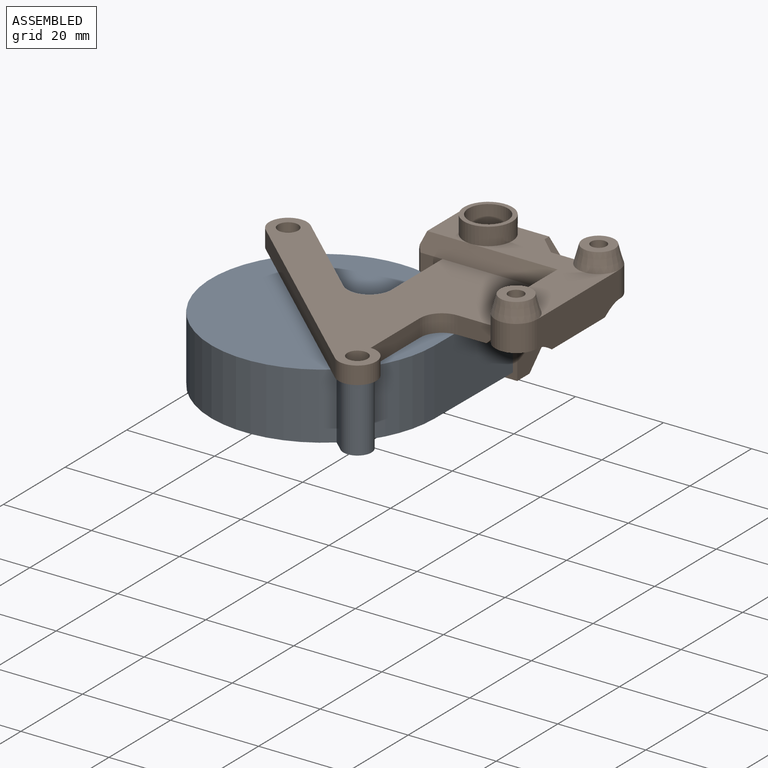
[diagram: assembled view]
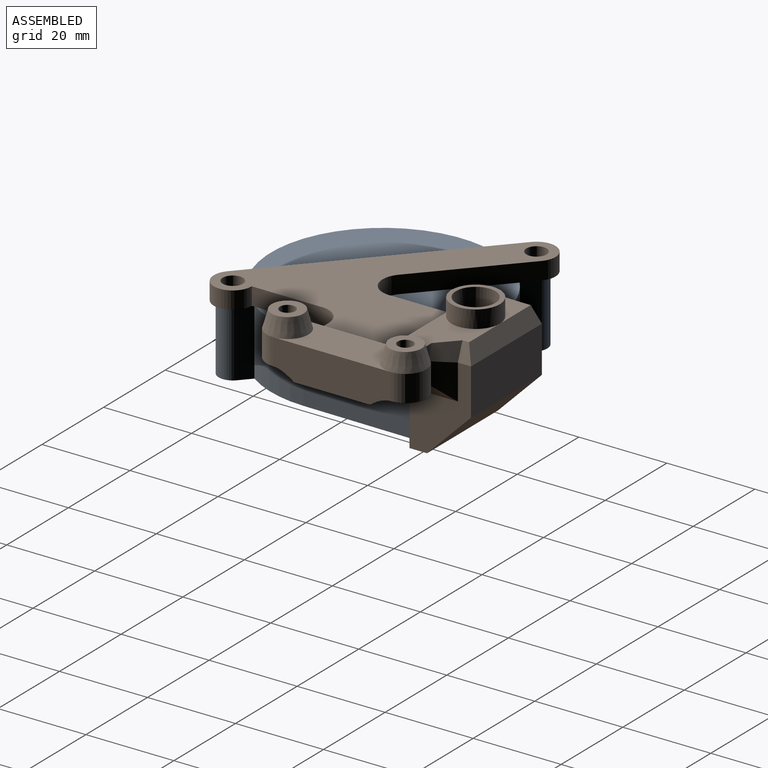
[diagram: assembled view, second angle]
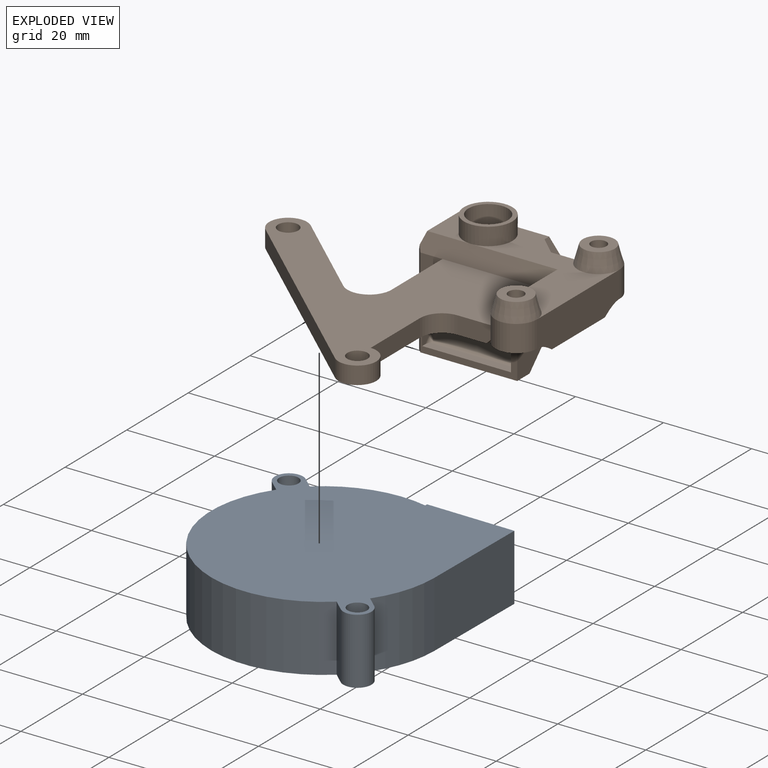
[diagram: exploded view]
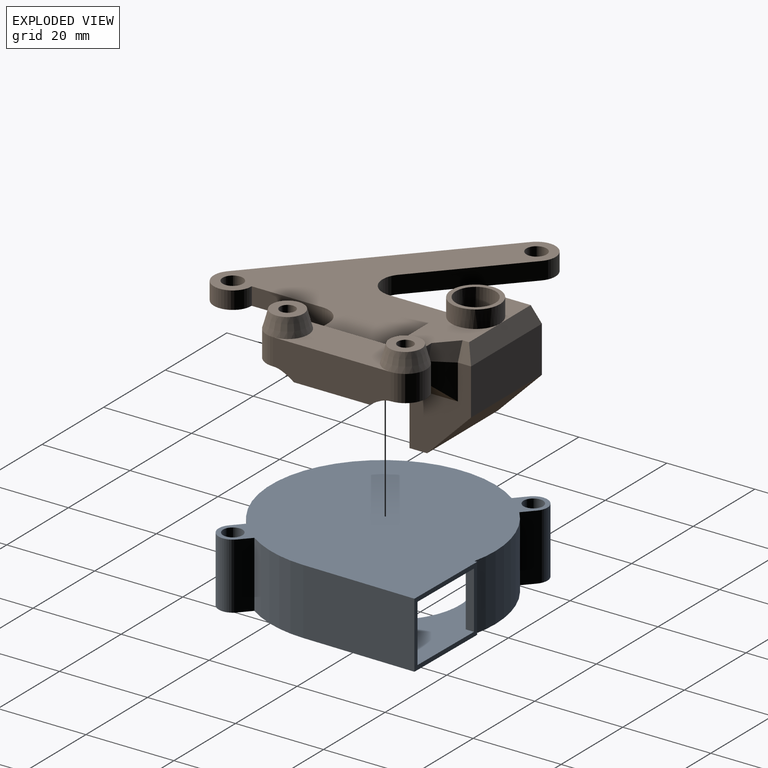
[diagram: exploded view, second angle]
ASSEMBLY  parts=2 mates=3
PART A: 23 faces, bbox 51x51x15 mm
  f0: plane 15x0.6mm, normal (-1,0,0), area 9mm2, adj f1,f12,f14,f15
  f1: plane 20x15mm, normal (0,-1,0), area 66mm2, adj f0,f2,f14,f15,f18,f19,f21,f22
  f2: plane 25.5x15mm, normal (1,0,0), area 382.5mm2, adj f1,f3,f14,f15
  f3: cylinder r=25.5mm len=15mm, axis (0,0,-1), area 228.7mm2, adj f2,f4,f14,f15
  f4: plane 15x2.54mm, normal (0.66,-0.75,0), area 50.9mm2, adj f3,f5,f14,f15
  f5: cylinder r=3.2mm len=15mm, axis (0,0,-1), area 150.8mm2, adj f4,f6,f14,f15
  f6: plane 15x2.54mm, normal (-0.66,0.75,0), area 50.9mm2, adj f5,f7,f14,f15
  f7: cylinder r=25.5mm len=42.34mm, axis (0,0,-1), area 1105.4mm2, adj f6,f8,f14,f15
  f8: plane 15x2.54mm, normal (-0.66,0.75,0), area 50.9mm2, adj f7,f9,f14,f15
  f9: cylinder r=3.2mm len=15mm, axis (0,0,-1), area 150.8mm2, adj f8,f10,f14,f15
  f10: plane 15x2.54mm, normal (0.66,-0.75,0), area 50.9mm2, adj f9,f12,f14,f15
  f11: cylinder r=2.2mm len=15mm, axis (0,0,-1), area 207.3mm2, adj f14,f15
  f12: cylinder r=25.5mm len=22.34mm, axis (0,0,-1), area 359mm2, adj f0,f10,f14,f15
  f13: cylinder r=2.2mm len=15mm, axis (0,0,-1), area 207.3mm2, adj f14,f15
  f14: plane 51x51mm, normal (0,0,1), area 1470mm2, adj f0,f1,f2,f3,f4,f5,f6,f7
  f15: plane 51x51mm, normal (0,0,-1), area 2224.8mm2, adj f0,f1,f2,f3,f4,f5,f6,f7
  f16: cylinder r=15.5mm len=31mm, axis (0,0,-1), area 97.4mm2, adj f14,f18
  f17: cylinder r=24.5mm len=49mm, axis (0,0,-1), area 1599.4mm2, adj f18,f19,f20,f22
  f18: plane 50x49mm, normal (0,0,-1), area 1275.9mm2, adj f1,f16,f17,f20,f21,f22
  f19: plane 50x49mm, normal (0,0,1), area 2030.7mm2, adj f1,f17,f20,f21,f22
  f20: plane 13x0.02mm, normal (0,-1,0), area 0.3mm2, adj f17,f18,f19,f21
  f21: plane 24.5x13mm, normal (-1,0,0), area 318.5mm2, adj f1,f18,f19,f20
  f22: plane 13x1.88mm, normal (1,0,0), area 24.4mm2, adj f1,f17,f18,f19
PART B: 97 faces, bbox 73.9x63.8x30 mm
  f0: plane 70.82x55.72mm, normal (0,0,-1), area 1374.9mm2, adj f7,f10,f23,f24,f25,f26,f27,f28
  f1: cone r=8.5mm half-angle=63.4deg, axis (0,0,-1), area 1.2mm2, adj f55,f56,f78
  f2: cone r=8.5mm half-angle=63.4deg, axis (0,0,-1), area 1.2mm2, adj f53,f54,f72
  f3: cylinder r=4.5mm len=9mm, axis (0,0,1), area 140.9mm2, adj f16,f45,f47,f48,f49,f50,f51,f52
  f4: cone r=8.5mm half-angle=63.4deg, axis (0,0,-1), area 1.2mm2, adj f46,f50,f68
  f5: plane 11x10mm, normal (0,0,1), area 62.5mm2, adj f15,f36,f37,f38
  f6: cylinder r=4.75mm len=9.5mm, axis (0,0,1), area 89.5mm2, adj f7,f12,f32,f87,f96
  f7: plane 28.29x9.49mm, normal (1,0,0), area 202.1mm2, adj f0,f6,f8,f14,f89,f90
  f8: cylinder r=4.75mm len=9.5mm, axis (0,0,1), area 89.5mm2, adj f7,f9,f88,f95
  f9: plane 6.22x1.19mm, normal (-1,0,0), area 6.6mm2, adj f8,f10,f14,f90
  f10: plane 8.06x5.39mm, normal (0,1,0), area 33mm2, adj f0,f9,f14,f90,f92,f93
  f11: cylinder r=1.75mm len=10mm, axis (0,0,1), area 110mm2, adj f18,f88
  f12: plane 20.2x4mm, normal (-1,0,0), area 77.8mm2, adj f6,f14,f19,f38
  f13: cylinder r=1.75mm len=10mm, axis (0,0,1), area 110mm2, adj f17,f87
  f14: plane 31.2x29.1mm, normal (0,0,1), area 307.5mm2, adj f7,f9,f10,f12,f15,f35,f36,f38
  f15: cylinder r=5.5mm len=11mm, axis (0,0,-1), area 138.2mm2, adj f5,f14,f16
  f16: plane 11x11mm, normal (0,0,1), area 31.4mm2, adj f3,f15
  f17: plane 7.3x7.3mm, normal (0,0,1), area 32.2mm2, adj f13,f96
  f18: plane 7.3x7.3mm, normal (0,0,1), area 32.2mm2, adj f11,f95
  f19: plane 60.9x48.3mm, normal (0,0,1), area 1188.7mm2, adj f12,f24,f25,f26,f27,f28,f29,f30
  f20: plane 20.5x14mm, normal (1,0,0), area 149mm2, adj f21,f23,f35,f63,f64,f91,f92
  f21: plane 23x10.5mm, normal (0,1,0), area 241.5mm2, adj f20,f22,f36,f64
  f22: plane 20.5x13mm, normal (-1,0,0), area 216.5mm2, adj f21,f37,f63,f64,f94
  f23: plane 26x20.5mm, normal (0,-1,0), area 86mm2, adj f0,f20,f24,f38,f41,f42,f60,f61
  f24: plane 16.52x4mm, normal (-1,0,0), area 66.1mm2, adj f0,f19,f23,f25
  f25: cylinder r=5mm len=8.36mm, axis (0,0,1), area 46.1mm2, adj f0,f19,f24,f26
  f26: plane 20.26x18.34mm, normal (0.67,0.74,0), area 109.3mm2, adj f0,f19,f25,f27
  f27: cylinder r=4.3mm len=7.49mm, axis (0,0,1), area 54mm2, adj f0,f19,f26,f28
  f28: plane 43x38.92mm, normal (-0.67,-0.74,0), area 232mm2, adj f0,f19,f27,f29
  f29: cylinder r=4.3mm len=8.6mm, axis (0,0,1), area 66.7mm2, adj f0,f19,f28,f30
  f30: plane 16x4mm, normal (1,0,0), area 64mm2, adj f0,f19,f29,f31
  f31: cylinder r=5mm len=5mm, axis (0,0,1), area 31.4mm2, adj f0,f19,f30,f32
  f32: plane 8.6x4mm, normal (0,-1,0), area 32.4mm2, adj f0,f6,f19,f31,f89
  f33: cylinder r=2.3mm len=4.6mm, axis (0,0,1), area 57.8mm2, adj f0,f19
  f34: cylinder r=2.3mm len=4.6mm, axis (0,0,1), area 57.8mm2, adj f0,f19
  f35: plane 4x3mm, normal (0.94,0,0.35), area 9.6mm2, adj f14,f20,f36,f93
  f36: plane 23x4mm, normal (0,0.94,0.35), area 91.8mm2, adj f5,f14,f21,f35,f37
  f37: plane 13.5x4mm, normal (-0.94,0,0.35), area 52.7mm2, adj f5,f22,f36,f38,f94
  f38: plane 30.6x4mm, normal (0,-0.94,0.35), area 128.9mm2, adj f5,f12,f14,f19,f23,f37,f94
  f39: plane 20.62x10.42mm, normal (0,-1,0), area 156mm2, adj f60,f61,f65,f75,f76,f77,f78,f79
  f40: plane 17.17x5mm, normal (0,1,0), area 57.9mm2, adj f0,f66,f67,f68,f69,f70,f71,f72
  f41: plane 11.5x5.51mm, normal (-0.71,0,-0.71), area 65.1mm2, adj f0,f23,f54,f55,f59,f61,f74,f75
  f42: plane 11.5x5.51mm, normal (0.71,0,-0.71), area 65.1mm2, adj f0,f23,f44,f45,f46,f60,f66,f77
  f43: cone r=8.5mm half-angle=63.4deg, axis (0,0,-1), area 1.2mm2, adj f44,f49,f81
  f44: bspline ~3.96x2.43mm, area 2.1mm2, adj f42,f43,f47,f79
  f45: bspline ~6.99x2.43mm, area 7.2mm2, adj f3,f42,f47,f48
  f46: bspline ~4.38x2.69mm, area 2.1mm2, adj f4,f42,f48,f67
  f47: bspline ~2.81x1.95mm, area 2.7mm2, adj f3,f44,f45,f49
  f48: bspline ~2.88x1.92mm, area 2.7mm2, adj f3,f45,f46,f50
  f49: torus R=6.5mm, axis (0,0,1), area 6.6mm2, adj f3,f43,f47,f51,f83
  f50: torus R=6.5mm, axis (0,0,1), area 6.6mm2, adj f3,f4,f48,f52,f69
  f51: bspline ~3.46x1.91mm, area 3.1mm2, adj f3,f49,f56,f82
  f52: bspline ~3.46x1.91mm, area 3.1mm2, adj f3,f50,f53,f70
  f53: torus R=6.5mm, axis (0,0,1), area 6.6mm2, adj f2,f3,f52,f57,f71
  f54: bspline ~3.96x2.43mm, area 2.1mm2, adj f2,f41,f57,f73
  f55: bspline ~4.38x2.69mm, area 2.1mm2, adj f1,f41,f58,f76
  f56: torus R=6.5mm, axis (0,0,1), area 6.6mm2, adj f1,f3,f51,f58,f80
  f57: bspline ~2.81x1.95mm, area 2.7mm2, adj f3,f53,f54,f59
  f58: bspline ~2.88x1.92mm, area 2.7mm2, adj f3,f55,f56,f59
  f59: bspline ~4.98x1.91mm, area 7.2mm2, adj f3,f41,f57,f58
  f60: plane 15.42x12.92mm, normal (1,0,0), area 120.9mm2, adj f23,f39,f42,f62,f77,f84
  f61: plane 15.42x12.92mm, normal (-1,0,0), area 120.9mm2, adj f23,f39,f41,f62,f75,f86
  f62: plane 20.26x2.05mm, normal (0,0,1), area 39.9mm2, adj f23,f60,f61,f84,f85,f86
  f63: plane 23x4mm, normal (0,0,-1), area 91.5mm2, adj f20,f22,f23,f64,f94
  f64: plane 23x10mm, normal (0,0.71,-0.71), area 325.3mm2, adj f20,f21,f22,f63
  f65: plane 18.2x9.81mm, normal (0,-0.71,0.71), area 252.4mm2, adj f39,f84,f85,f86
  f66: cylinder r=1mm len=5.04mm, axis (-0.71,0,-0.71), area 8.8mm2, adj f0,f40,f42,f67
  f67: bspline ~2.05x1.6mm, area 1.3mm2, adj f40,f46,f66,f68
  f68: bspline ~4.35x2.22mm, area 2.4mm2, adj f4,f40,f67,f69
  f69: bspline ~2.53x1.23mm, area 1.7mm2, adj f40,f50,f68,f70
  f70: bspline ~2.73x0.92mm, area 1.6mm2, adj f40,f52,f69,f71
  f71: bspline ~3.88x1.49mm, area 1.7mm2, adj f40,f53,f70,f72
  f72: bspline ~4.35x2.22mm, area 2.4mm2, adj f2,f40,f71,f73
  f73: bspline ~1.84x1.55mm, area 1.3mm2, adj f40,f54,f72,f74
  f74: cylinder r=1mm len=5.04mm, axis (0.71,0,-0.71), area 8.8mm2, adj f0,f40,f41,f73
  f75: cylinder r=1mm len=5.85mm, axis (0.71,0,-0.71), area 10.6mm2, adj f39,f41,f61,f76
  f76: bspline ~2.05x1.59mm, area 1.3mm2, adj f39,f55,f75,f78
  f77: cylinder r=1mm len=5.85mm, axis (-0.71,0,-0.71), area 10.6mm2, adj f39,f42,f60,f79
  f78: bspline ~5.22x2.38mm, area 2.4mm2, adj f1,f39,f76,f80
  f79: bspline ~2.05x1.6mm, area 1.3mm2, adj f39,f44,f77,f81
  f80: bspline ~3.88x1.49mm, area 1.7mm2, adj f39,f56,f78,f82
  f81: bspline ~4.35x2.22mm, area 2.4mm2, adj f39,f43,f79,f83
  f82: bspline ~2.84x0.92mm, area 1.6mm2, adj f39,f51,f80,f83
  f83: bspline ~2.53x1.23mm, area 1.7mm2, adj f39,f49,f81,f82
  f84: cylinder r=1mm len=12.22mm, axis (0,-0.71,-0.71), area 23.7mm2, adj f39,f60,f62,f65,f85
  f85: cylinder r=1mm len=19.61mm, axis (1,0,0), area 14.8mm2, adj f62,f65,f84,f86
  f86: cylinder r=1mm len=12.22mm, axis (0,-0.71,-0.71), area 23.7mm2, adj f39,f61,f62,f65,f85
  f87: plane 9.5x9.5mm, normal (0,0,-1), area 61.3mm2, adj f6,f13,f89
  f88: plane 9.5x9.5mm, normal (0,0,-1), area 61.3mm2, adj f8,f11,f90
  f89: cone r=4.75mm half-angle=45deg, axis (0,0,-1), area 44.3mm2, adj f0,f7,f32,f87
  f90: cone r=4.75mm half-angle=45deg, axis (0,0,-1), area 38.7mm2, adj f0,f7,f9,f10,f88
  f91: plane 11x4mm, normal (0.71,0,-0.71), area 50.9mm2, adj f0,f20,f23,f92
  f92: plane 8.73x4mm, normal (0.71,0.71,0), area 36mm2, adj f10,f20,f91,f93
  f93: plane 5.5x4mm, normal (0.66,0.71,0.25), area 22mm2, adj f10,f14,f35,f92
  f94: plane 21.83x1mm, normal (-0.71,-0.71,0), area 29.9mm2, adj f22,f23,f37,f38,f63
  f95: cone r=3.65mm half-angle=15.4deg, axis (0,0,-1), area 109.5mm2, adj f8,f14,f18
  f96: cone r=3.65mm half-angle=15.4deg, axis (0,0,-1), area 109.5mm2, adj f6,f14,f17
PLACE A rot(axis=(1,-0.01,0),180deg) t=(99.07,-29.13,-46.86)mm
PLACE B rot(axis=(-1,0,0),0deg) t=(-83.99,-135.4,-38.86)mm
MATE cylindrical A.f5 <-> B.f29  axis (0,0,1) through (120.34,-48.38,-54.36)mm
MATE planar A.f15 <-> B.f0  axis (0,0,1) through (100.32,-27.91,-46.86)mm
MATE parallel B.f28 <-> A.f8  axis (-0.67,-0.74,0) through (95.95,-32.11,-44.86)mm
